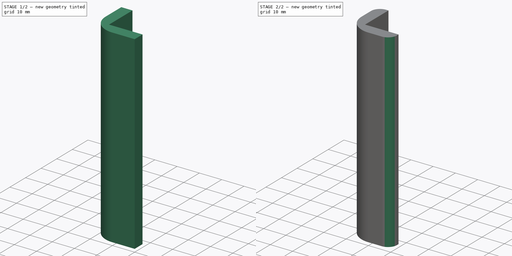
[diagram: build sequence overview — one tinted view per stage of 2, left to right]
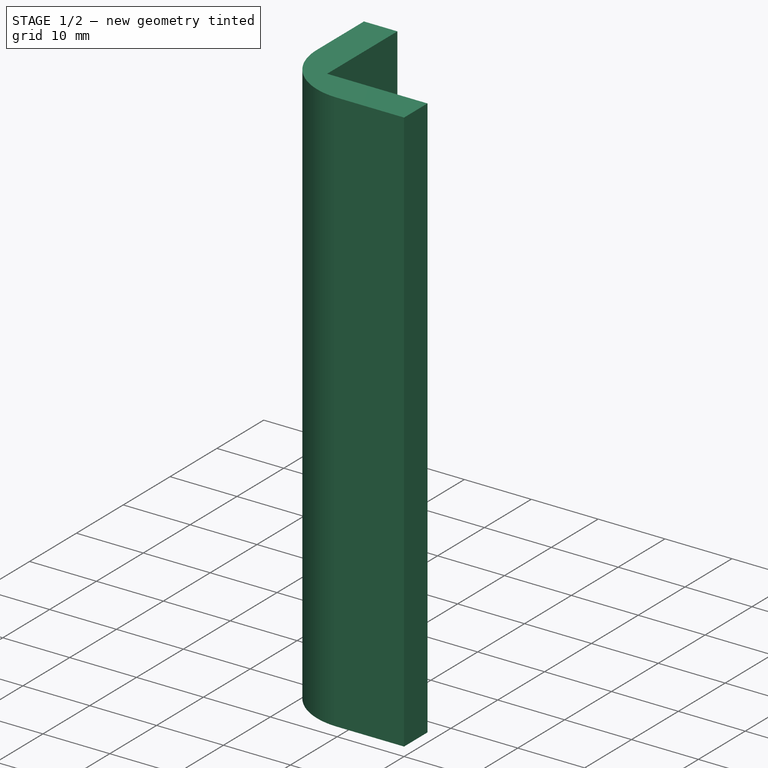
[diagram: stage 1 of 2 — iso view after this stage's code; geometry added in this stage tinted green]
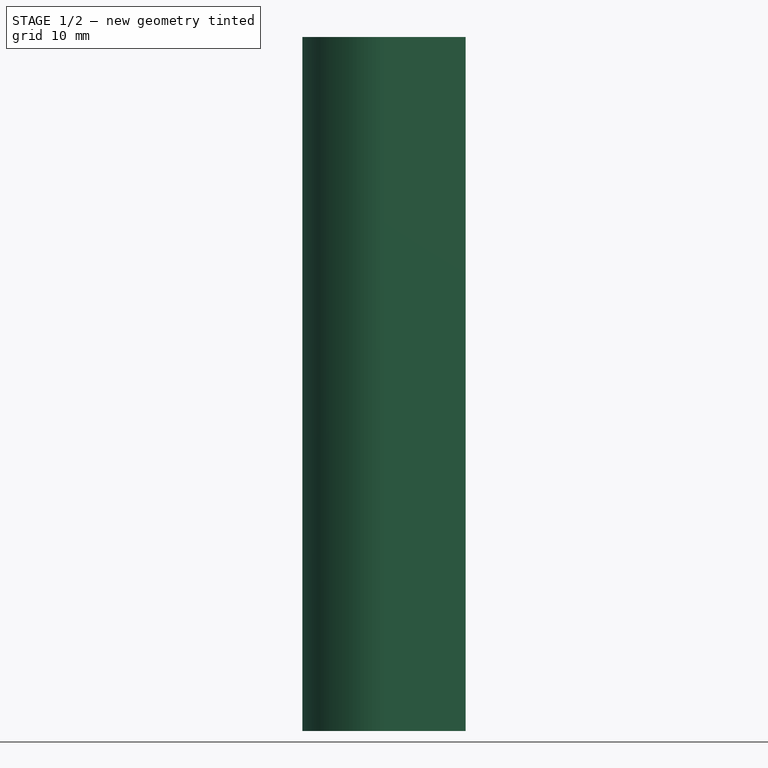
[diagram: stage 1 of 2 — front view after this stage's code; geometry added in this stage tinted green]
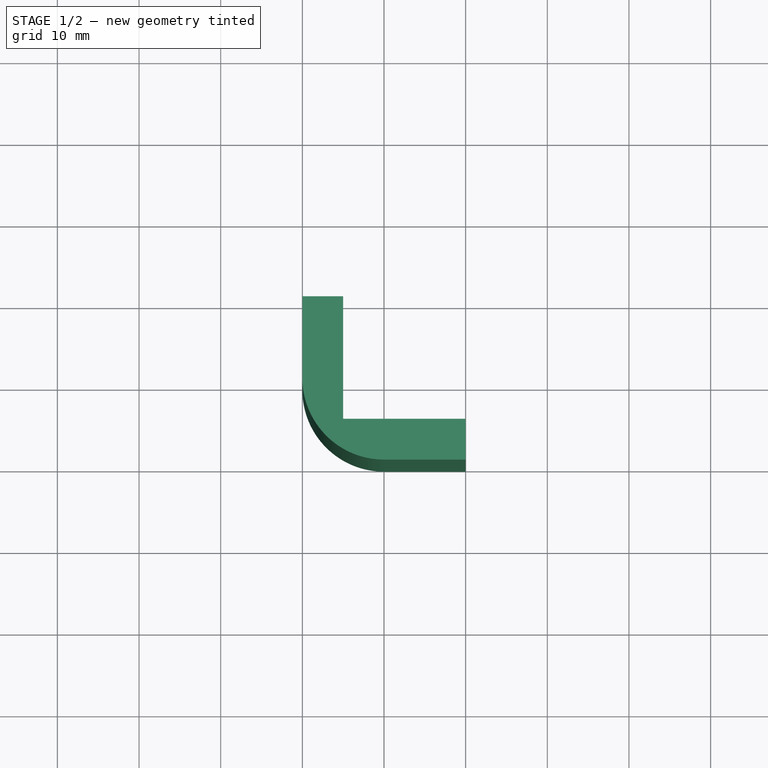
[diagram: stage 1 of 2 — top view after this stage's code; geometry added in this stage tinted green]
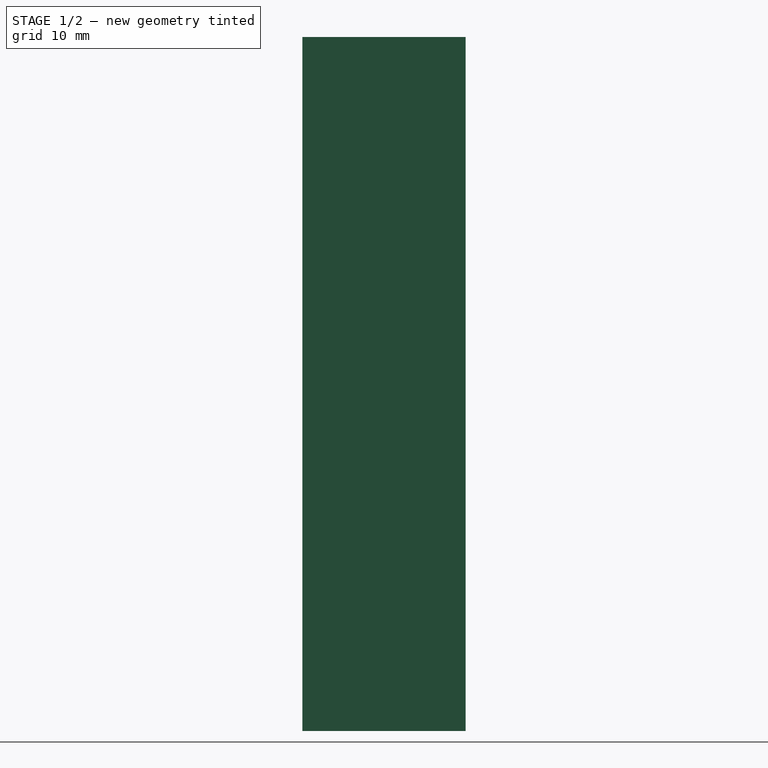
[diagram: stage 1 of 2 — right view after this stage's code; geometry added in this stage tinted green]
FCSTD DOCUMENT  (FreeCAD 0.19R)
Label: Film_Spool_6
License: All rights reserved
LicenseURL: http://en.wikipedia.org/wiki/All_rights_reserved
objects: PartDesign::Fillet×2, Sketcher::SketchObject×1, PartDesign::Pad×1, PartDesign::Body×1
note: 8 computed .brp shape members not serialized (recipe doc carries the construction recipe); baked Part::Feature solids carry a one-line shape summary decoded from their .brp

FEATURE [Sketcher::SketchObject] Sketch
  FullyConstrained = true
  MapMode = 5
  Support = -> [XY_Plane]
  sketch-geometry (6):
    g0: LineSegment StartX=-1e-16 StartY=20 StartZ=0 EndX=-1e-16 EndY=0 EndZ=0
    g1: LineSegment StartX=-1e-16 StartY=0 StartZ=0 EndX=20 EndY=0 EndZ=0
    g2: LineSegment StartX=20 StartY=0 StartZ=0 EndX=20 EndY=5 EndZ=0
    g3: LineSegment StartX=20 StartY=5 StartZ=0 EndX=5 EndY=5 EndZ=0
    g4: LineSegment StartX=5 StartY=5 StartZ=0 EndX=5 EndY=20 EndZ=0
    g5: LineSegment StartX=5 StartY=20 StartZ=0 EndX=0 EndY=20 EndZ=0
  constraints (17):
    c: Vertical(g0)
    c: Coincident(g5,g0)
    c: Horizontal(g1)
    c: Horizontal(g3)
    c: Vertical(g4)
    c: Coincident(g3,g4)
    c: Coincident(g1,g2)
    c: Vertical(g2)
    c: Coincident(g2,g3)
    c: Coincident(g4,g5)
    c: Horizontal(g5)
    c: Equal(g5,g2)
    c: Coincident(g0,g1)
    c: Coincident(g0,g-1)
    c: DistanceX(g1,g1) = 20
    c: Equal(g1,g0)
    c: DistanceY(g2,g2) = 5
FEATURE [PartDesign::Pad] Pad
  Direction = (1,1,1)
  Length = 85
  Length2 = 100
  Profile = -> Sketch
  Type = 0
FEATURE [PartDesign::Fillet] Fillet
  Base = -> Pad [Edge2]
  BaseFeature = -> Pad
  Radius = 10
  SupportTransform = false
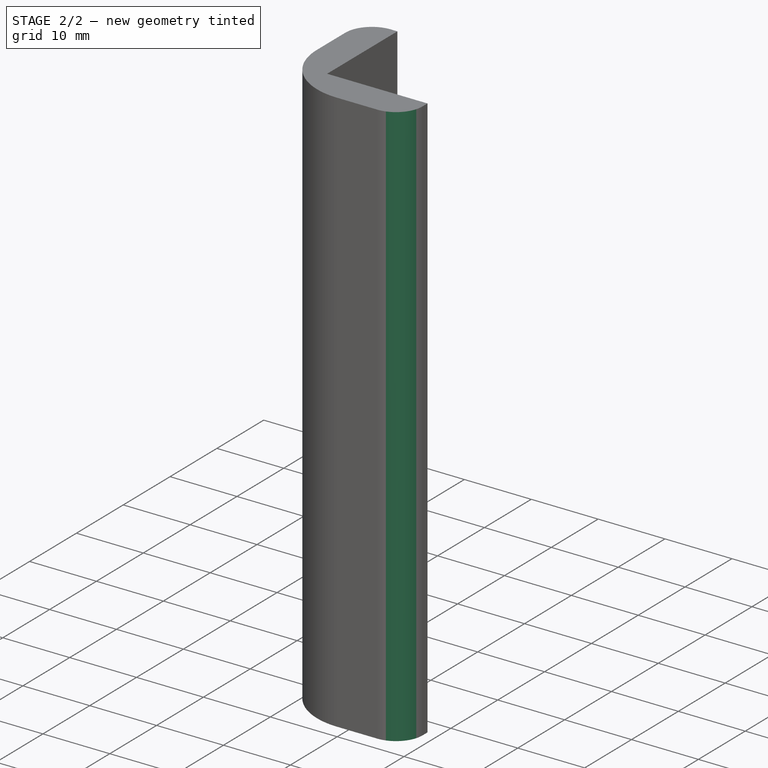
[diagram: stage 2 of 2 — iso view after this stage's code; geometry added in this stage tinted green]
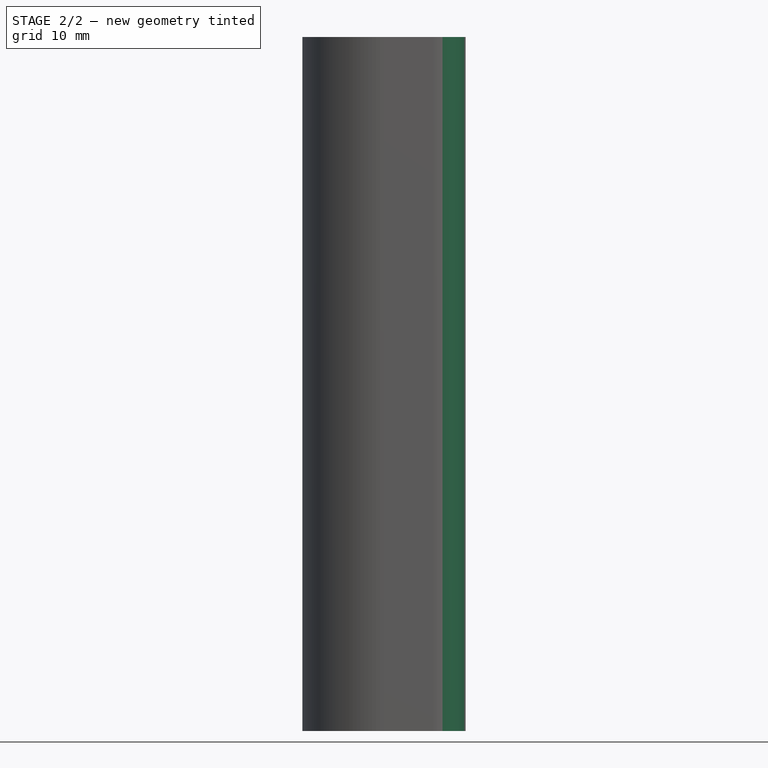
[diagram: stage 2 of 2 — front view after this stage's code; geometry added in this stage tinted green]
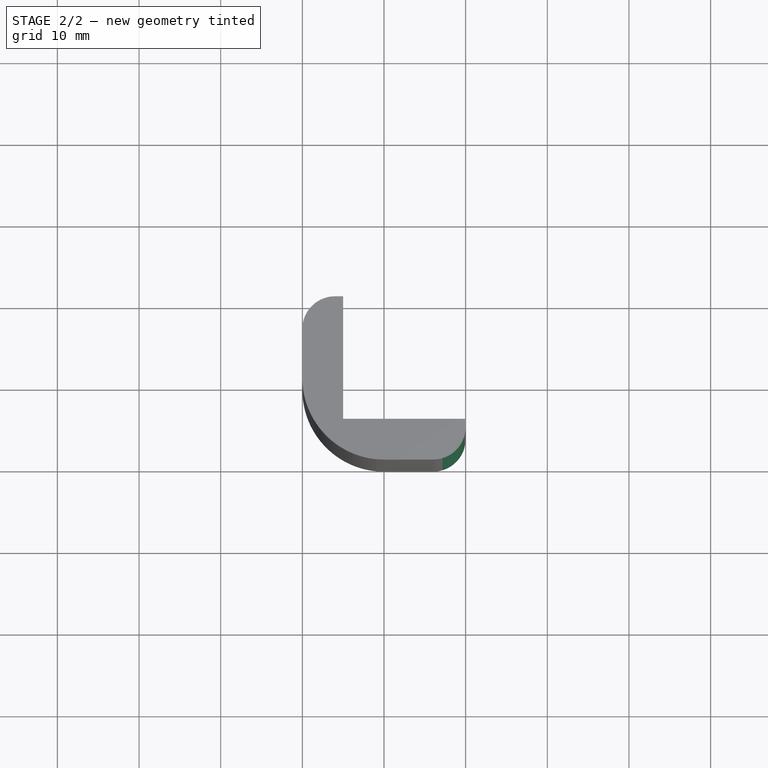
[diagram: stage 2 of 2 — top view after this stage's code; geometry added in this stage tinted green]
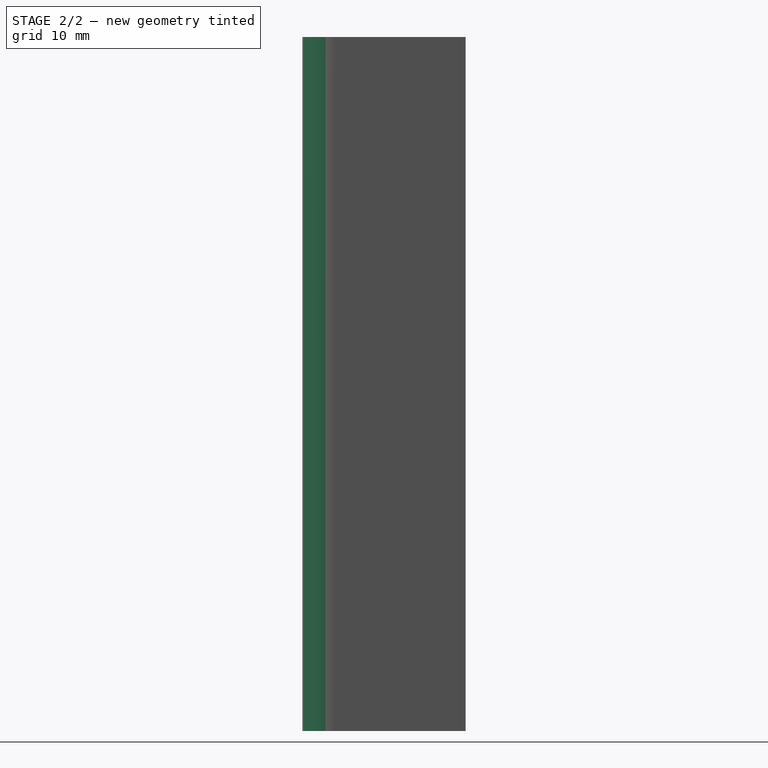
[diagram: stage 2 of 2 — right view after this stage's code; geometry added in this stage tinted green]
FEATURE [PartDesign::Fillet] Fillet001
  Base = -> Fillet [Edge3,Edge19]
  BaseFeature = -> Fillet
  Radius = 4
  SupportTransform = false
FEATURE [PartDesign::Body] Body
  Group = -> [Sketch,Pad,Fillet,Fillet001]
  Origin = -> Origin
  Tip = -> Fillet001
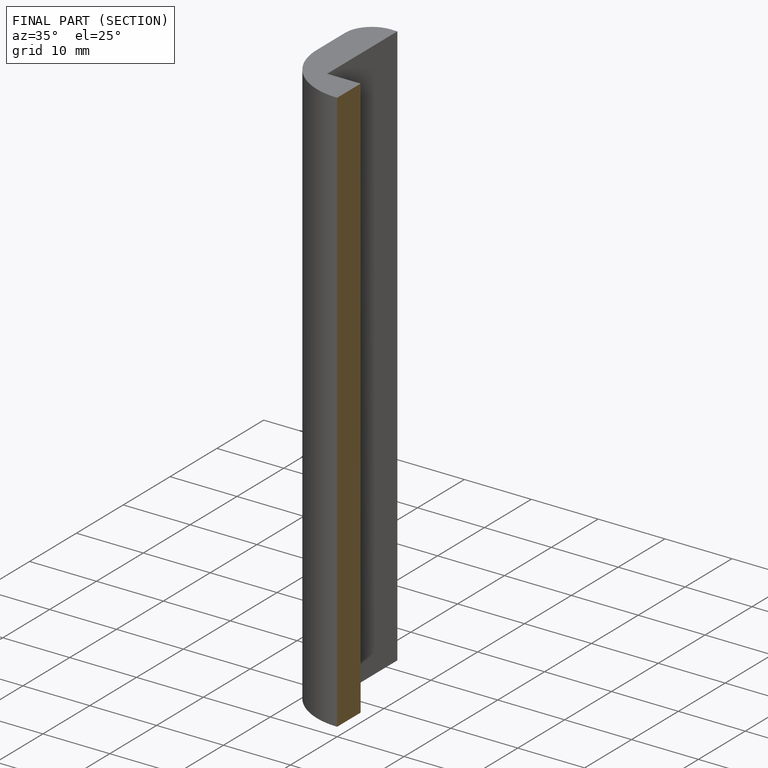
[diagram: finished part — half-section view (interior)]
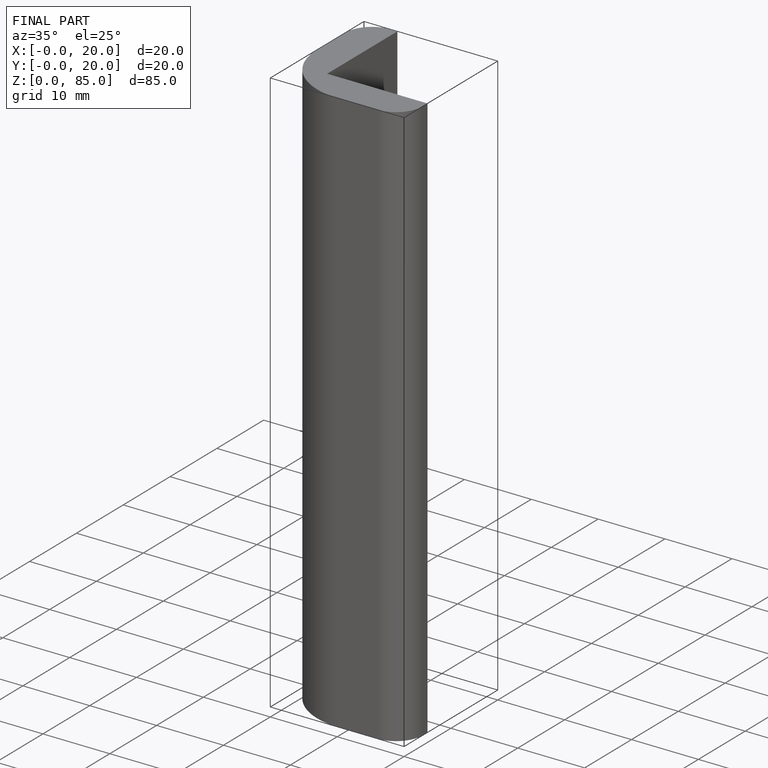
[diagram: finished part — iso view with bounding-box wireframe]
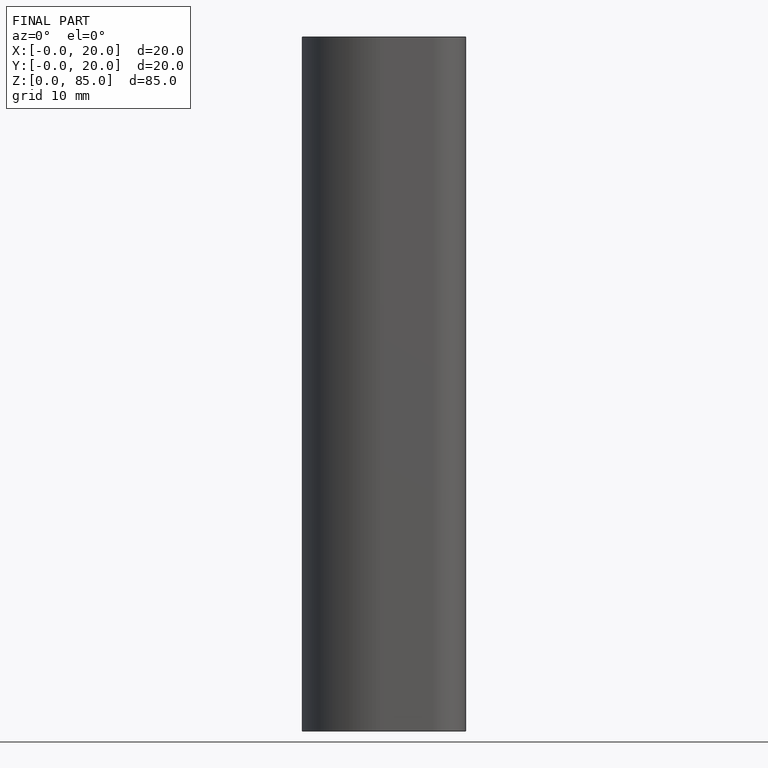
[diagram: finished part — front view with bounding-box wireframe]
